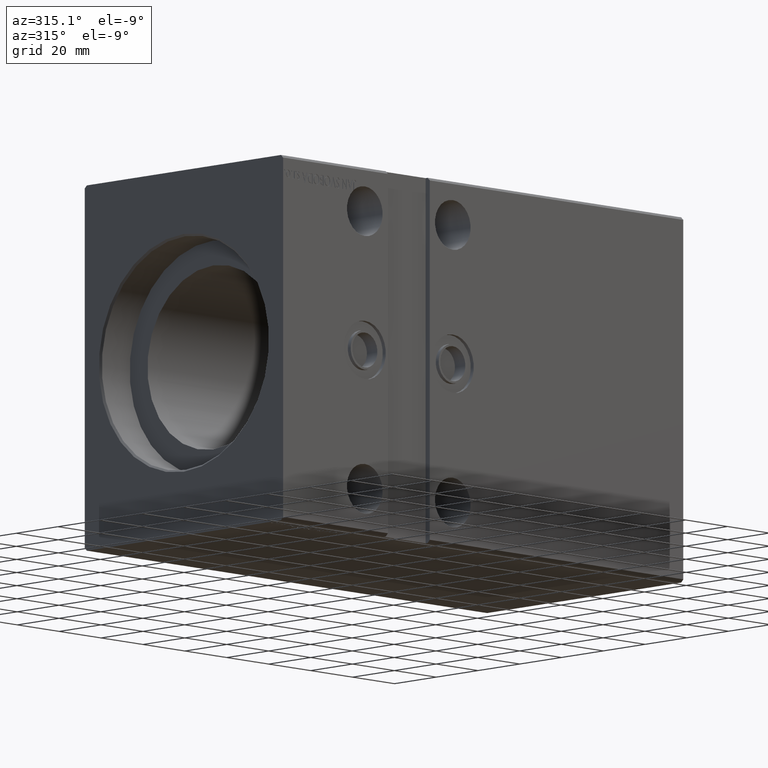
[diagram: clean part render]
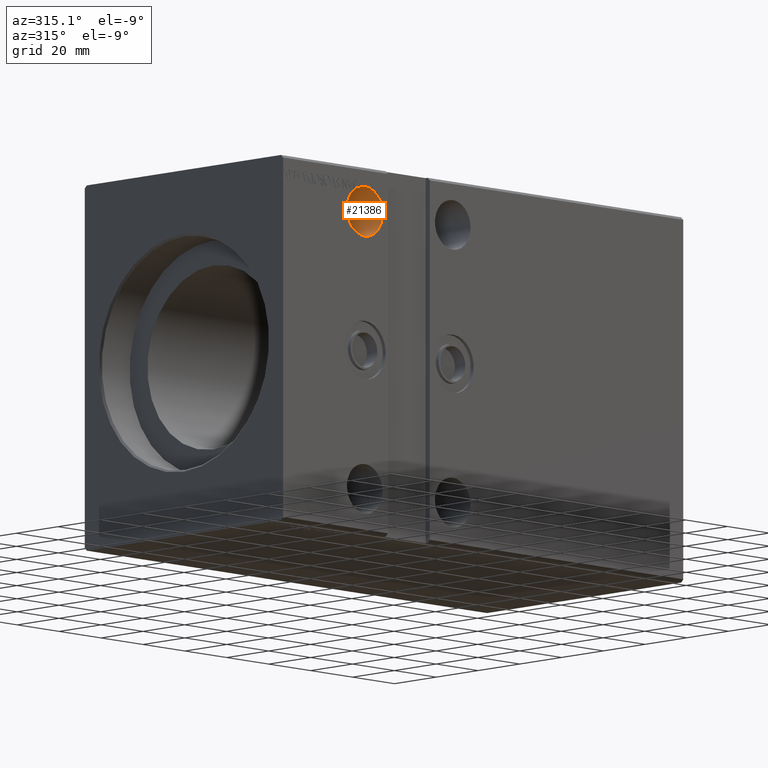
[diagram: same view with one face highlighted and labeled with its STEP entity id]
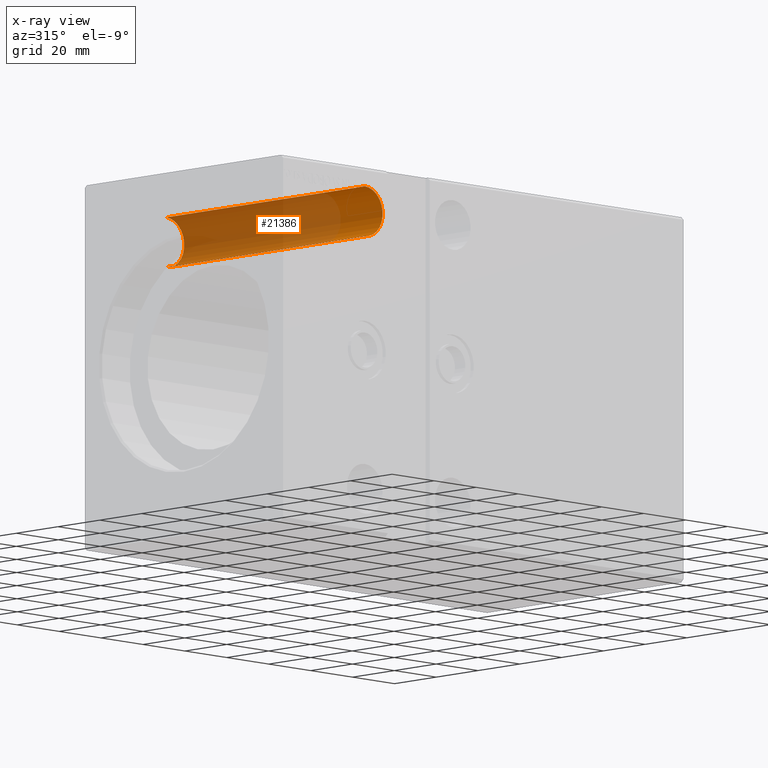
[diagram: x-ray of the same camera — body ghosted, the highlighted face saturated]
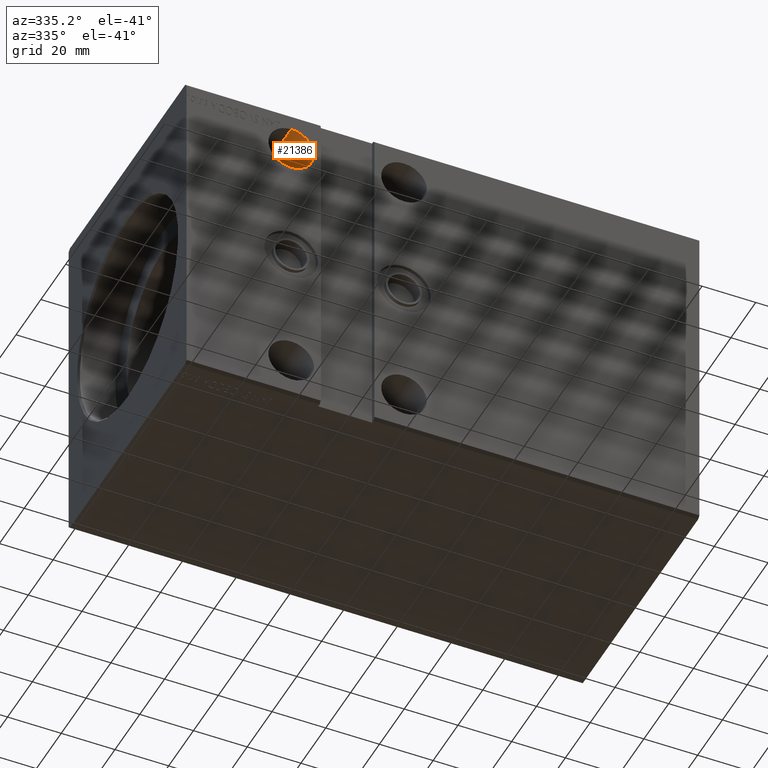
[diagram: same view with one face highlighted and labeled with its STEP entity id]
A machine part, auxiliary view. The second image highlights one B-rep face of the part: STEP entity #21386.
The next image is the same camera in x-ray: the body ghosted, the highlighted face saturated — about 79% of this face is hidden behind the body in this view.
A second angle (auxiliary view) of the same face is appended — the face is thin or edge-on in the first view.
In plain terms, the highlighted cylindrical surface (edge-blend (fillet) strip) has radius 8.5 mm, axis along (-0, -1, -0).
Its self-contained STEP definition (entity closure, byte-faithful):
#596 = EDGE_CURVE ( 'NONE', #38851, #7366, #9804, .T. ) ;
#3803 = VERTEX_POINT ( 'NONE', #31763 ) ;
#4056 = CYLINDRICAL_SURFACE ( 'NONE', #22372, 8.500000000000000000 ) ;
#6948 = VECTOR ( 'NONE', #8894, 1000.000000000000000 ) ;
#7366 = VERTEX_POINT ( 'NONE', #40854 ) ;
#8894 = DIRECTION ( 'NONE',  ( -0.000000000000000000, -1.000000000000000000, -5.507058653894625237E-17 ) ) ;
#9731 = EDGE_CURVE ( 'NONE', #38851, #3803, #16021, .T. ) ;
#9804 = LINE ( 'NONE', #16616, #22820 ) ;
#9916 = DIRECTION ( 'NONE',  ( 0.000000000000000000, -1.000000000000000000, -5.507058653894625853E-17 ) ) ;
#10654 = DIRECTION ( 'NONE',  ( 0.000000000000000000, 0.000000000000000000, -1.000000000000000000 ) ) ;
#15705 = ORIENTED_EDGE ( 'NONE', *, *, #35166, .F. ) ;
#15744 = ORIENTED_EDGE ( 'NONE', *, *, #596, .T. ) ;
#16021 = CIRCLE ( 'NONE', #39747, 8.500000000000000000 ) ;
#16616 = CARTESIAN_POINT ( 'NONE',  ( 38.99999999999998579, 47.50000000000004974, 38.99999999999999289 ) ) ;
#17250 = DIRECTION ( 'NONE',  ( -0.000000000000000000, -1.000000000000000000, -5.507058653894625237E-17 ) ) ;
#17584 = EDGE_LOOP ( 'NONE', ( #15705, #25631, #15744, #35210 ) ) ;
#21015 = CIRCLE ( 'NONE', #29174, 8.500000000000007105 ) ;
#21128 = EDGE_CURVE ( 'NONE', #21470, #7366, #21015, .T. ) ;
#21386 = ADVANCED_FACE ( 'NONE', ( #30202 ), #4056, .F. ) ;
#21470 = VERTEX_POINT ( 'NONE', #27152 ) ;
#21644 = CARTESIAN_POINT ( 'NONE',  ( 38.99999999999998579, -47.50000000000000711, 47.49999999999998579 ) ) ;
#22012 = CARTESIAN_POINT ( 'NONE',  ( 38.99999999999998579, 47.50000000000004974, 38.99999999999999289 ) ) ;
#22236 = DIRECTION ( 'NONE',  ( 0.000000000000000000, 0.000000000000000000, -1.000000000000000000 ) ) ;
#22372 = AXIS2_PLACEMENT_3D ( 'NONE', #32968, #17250, #10654 ) ;
#22666 = CARTESIAN_POINT ( 'NONE',  ( 38.99999999999998579, 47.50000000000004974, 47.49999999999999289 ) ) ;
#22820 = VECTOR ( 'NONE', #29567, 1000.000000000000000 ) ;
#25631 = ORIENTED_EDGE ( 'NONE', *, *, #9731, .F. ) ;
#27152 = CARTESIAN_POINT ( 'NONE',  ( 38.99999999999998579, -47.50000000000000711, 55.99999999999999289 ) ) ;
#28218 = DIRECTION ( 'NONE',  ( 0.000000000000000000, 0.000000000000000000, 1.000000000000000000 ) ) ;
#28659 = CARTESIAN_POINT ( 'NONE',  ( 38.99999999999998579, 47.50000000000004974, 55.99999999999999289 ) ) ;
#29174 = AXIS2_PLACEMENT_3D ( 'NONE', #21644, #40967, #28218 ) ;
#29567 = DIRECTION ( 'NONE',  ( -0.000000000000000000, -1.000000000000000000, -5.507058653894625237E-17 ) ) ;
#30202 = FACE_OUTER_BOUND ( 'NONE', #17584, .T. ) ;
#31763 = CARTESIAN_POINT ( 'NONE',  ( 38.99999999999998579, 47.50000000000004974, 55.99999999999999289 ) ) ;
#32968 = CARTESIAN_POINT ( 'NONE',  ( 38.99999999999998579, 47.50000000000004974, 47.49999999999999289 ) ) ;
#35025 = LINE ( 'NONE', #28659, #6948 ) ;
#35166 = EDGE_CURVE ( 'NONE', #3803, #21470, #35025, .T. ) ;
#35210 = ORIENTED_EDGE ( 'NONE', *, *, #21128, .F. ) ;
#38851 = VERTEX_POINT ( 'NONE', #22012 ) ;
#39747 = AXIS2_PLACEMENT_3D ( 'NONE', #22666, #9916, #22236 ) ;
#40854 = CARTESIAN_POINT ( 'NONE',  ( 38.99999999999998579, -47.50000000000000711, 38.99999999999997868 ) ) ;
#40967 = DIRECTION ( 'NONE',  ( -0.000000000000000000, 1.000000000000000000, 1.692413147294445970E-16 ) ) ;